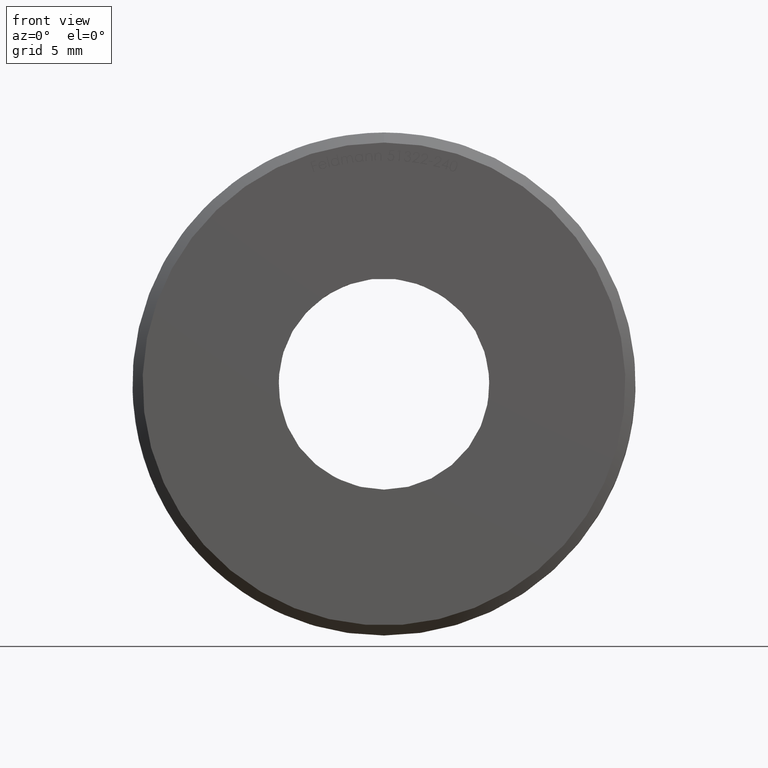
[diagram: clean part render]
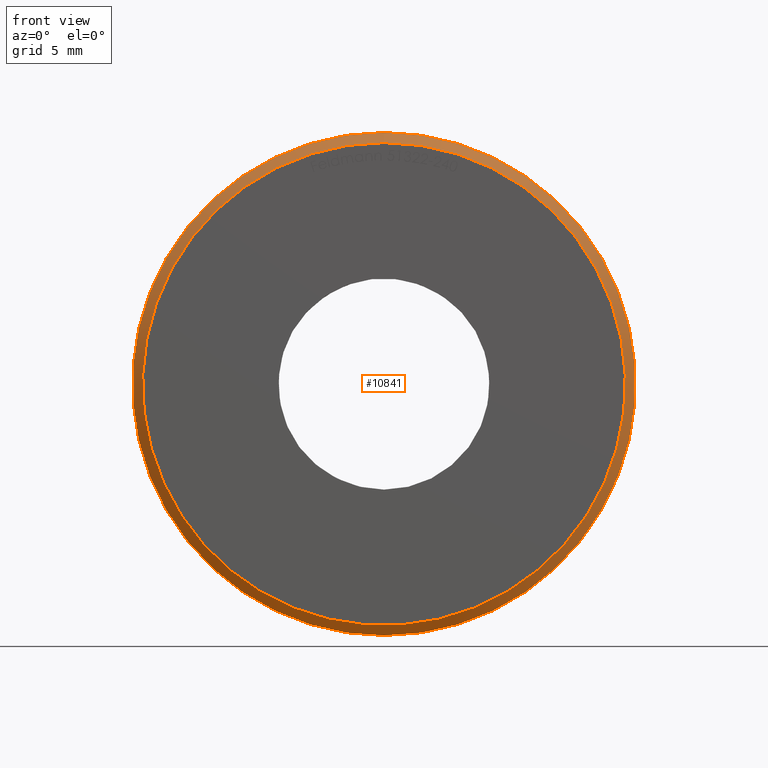
[diagram: same view with one face highlighted and labeled with its STEP entity id]
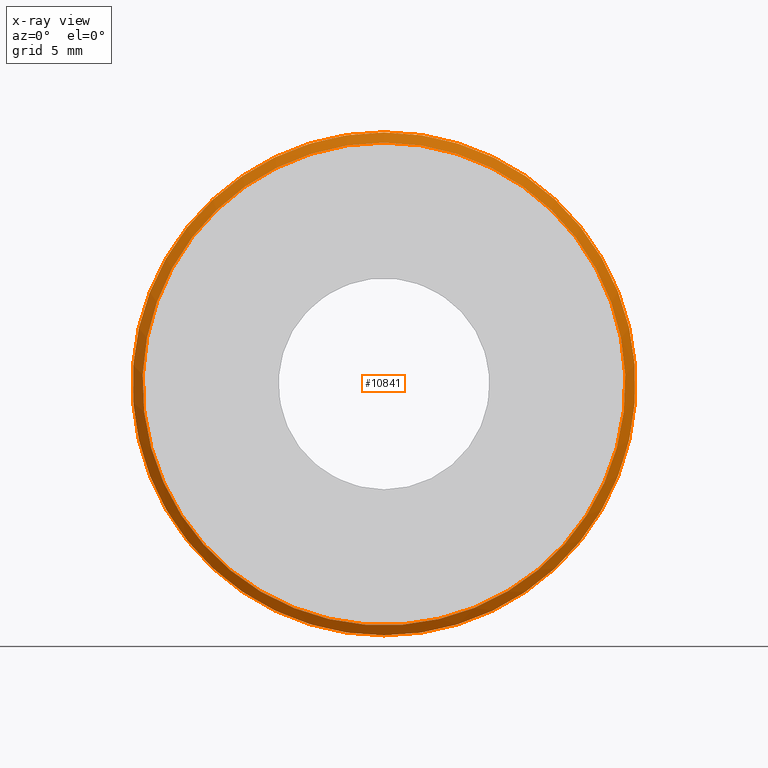
[diagram: x-ray of the same camera — body ghosted, the highlighted face saturated]
A machine part, front view. The second image highlights one B-rep face of the part: STEP entity #10841.
The next image is the same camera in x-ray: the body ghosted, the highlighted face saturated — about 0% of this face is hidden behind the body in this view.
In plain terms, the highlighted conical surface has half-angle 45 deg.
Its self-contained STEP definition (entity closure, byte-faithful):
#659 = DIRECTION ( 'NONE',  ( -0.000000000000000000, 1.000000000000000000, -0.000000000000000000 ) ) ;
#1373 = AXIS2_PLACEMENT_3D ( 'NONE', #3110, #7761, #4872 ) ;
#2067 = AXIS2_PLACEMENT_3D ( 'NONE', #7321, #9338, #3843 ) ;
#2782 = VERTEX_POINT ( 'NONE', #12098 ) ;
#3110 = CARTESIAN_POINT ( 'NONE',  ( 0.000000000000000000, 0.5000000000000091038, 0.000000000000000000 ) ) ;
#3578 = CONICAL_SURFACE ( 'NONE', #11981, 12.50000000000000000, 0.7853981633974500554 ) ;
#3843 = DIRECTION ( 'NONE',  ( 0.000000000000000000, 0.000000000000000000, 1.000000000000000000 ) ) ;
#4535 = CIRCLE ( 'NONE', #1373, 12.50000000000000000 ) ;
#4872 = DIRECTION ( 'NONE',  ( 0.000000000000000000, 0.000000000000000000, 1.000000000000000000 ) ) ;
#5511 = DIRECTION ( 'NONE',  ( 0.000000000000000000, 0.000000000000000000, 1.000000000000000000 ) ) ;
#6163 = EDGE_CURVE ( 'NONE', #2782, #2782, #4535, .T. ) ;
#6907 = EDGE_LOOP ( 'NONE', ( #10791 ) ) ;
#7321 = CARTESIAN_POINT ( 'NONE',  ( 0.000000000000000000, 0.000000000000000000, 0.000000000000000000 ) ) ;
#7663 = CIRCLE ( 'NONE', #2067, 11.99999999999998934 ) ;
#7761 = DIRECTION ( 'NONE',  ( -0.000000000000000000, 1.000000000000000000, -0.000000000000000000 ) ) ;
#8069 = EDGE_LOOP ( 'NONE', ( #8853 ) ) ;
#8333 = VERTEX_POINT ( 'NONE', #9232 ) ;
#8853 = ORIENTED_EDGE ( 'NONE', *, *, #6163, .F. ) ;
#9232 = CARTESIAN_POINT ( 'NONE',  ( 0.000000000000000000, 0.000000000000000000, 11.99999999999998934 ) ) ;
#9338 = DIRECTION ( 'NONE',  ( -0.000000000000000000, -1.000000000000000000, -0.000000000000000000 ) ) ;
#10094 = CARTESIAN_POINT ( 'NONE',  ( 0.000000000000000000, 0.5000000000000091038, 0.000000000000000000 ) ) ;
#10207 = FACE_OUTER_BOUND ( 'NONE', #8069, .T. ) ;
#10791 = ORIENTED_EDGE ( 'NONE', *, *, #10925, .F. ) ;
#10841 = ADVANCED_FACE ( 'NONE', ( #12311, #10207 ), #3578, .T. ) ;
#10925 = EDGE_CURVE ( 'NONE', #8333, #8333, #7663, .T. ) ;
#11981 = AXIS2_PLACEMENT_3D ( 'NONE', #10094, #659, #5511 ) ;
#12098 = CARTESIAN_POINT ( 'NONE',  ( 0.000000000000000000, 0.5000000000000091038, 12.50000000000000000 ) ) ;
#12311 = FACE_BOUND ( 'NONE', #6907, .T. ) ;